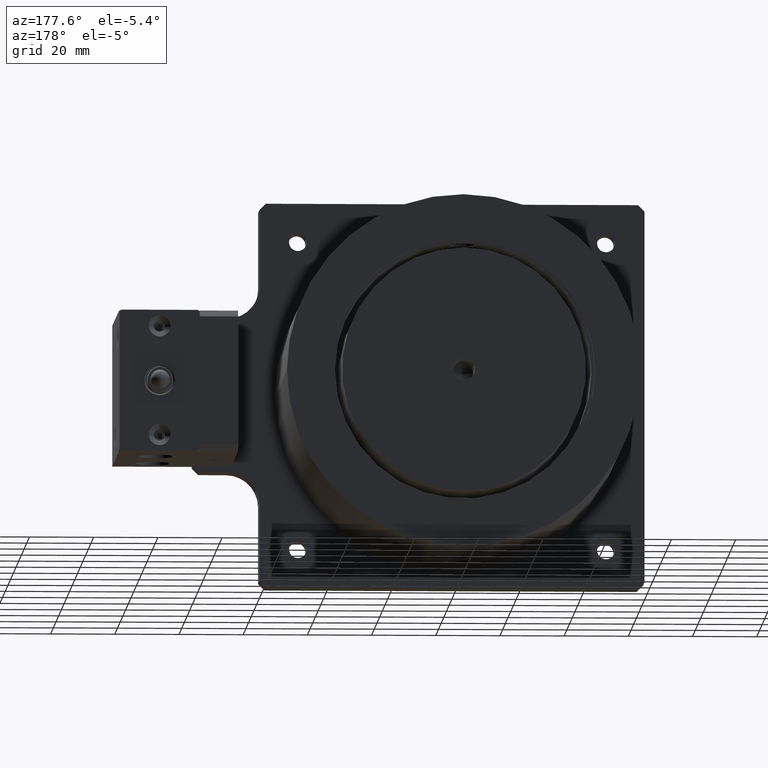
[diagram: clean part render]
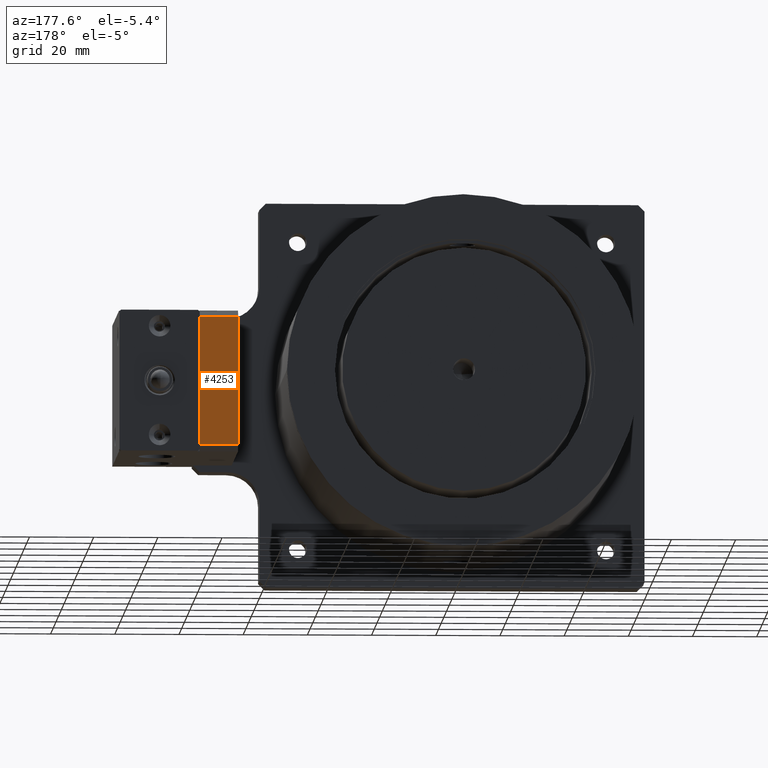
[diagram: same view with one face highlighted and labeled with its STEP entity id]
A machine part, auxiliary view. The second image highlights one B-rep face of the part: STEP entity #4253.
In plain terms, the highlighted planar face has unit normal (0, 1, 0).
Its self-contained STEP definition (entity closure, byte-faithful):
#3412=DIRECTION('',(0.E0,1.E0,0.E0));
#3413=VECTOR('',#3412,4.E1);
#3414=CARTESIAN_POINT('',(2.5E1,-2.E1,-6.E0));
#3415=LINE('',#3414,#3413);
#3528=DIRECTION('',(0.E0,1.E0,0.E0));
#3529=VECTOR('',#3528,4.E1);
#3530=CARTESIAN_POINT('',(2.5E1,-2.E1,6.E0));
#3531=LINE('',#3530,#3529);
#3771=DIRECTION('',(0.E0,0.E0,-1.E0));
#3772=VECTOR('',#3771,1.2E1);
#3773=CARTESIAN_POINT('',(2.5E1,2.E1,6.E0));
#3774=LINE('',#3773,#3772);
#3778=DIRECTION('',(0.E0,0.E0,-1.E0));
#3779=VECTOR('',#3778,1.2E1);
#3780=CARTESIAN_POINT('',(2.5E1,-2.E1,6.E0));
#3781=LINE('',#3780,#3779);
#3808=CARTESIAN_POINT('',(2.5E1,2.E1,-6.E0));
#3810=VERTEX_POINT('',#3808);
#3811=CARTESIAN_POINT('',(2.5E1,2.E1,6.E0));
#3812=VERTEX_POINT('',#3811);
#3815=CARTESIAN_POINT('',(2.5E1,-2.E1,-6.E0));
#3816=VERTEX_POINT('',#3815);
#3817=CARTESIAN_POINT('',(2.5E1,-2.E1,6.E0));
#3818=VERTEX_POINT('',#3817);
#4241=CARTESIAN_POINT('',(2.5E1,-2.2E1,-6.E0));
#4242=DIRECTION('',(1.E0,0.E0,0.E0));
#4243=DIRECTION('',(0.E0,1.E0,0.E0));
#4244=AXIS2_PLACEMENT_3D('',#4241,#4242,#4243);
#4245=PLANE('',#4244);
#4246=ORIENTED_EDGE('',*,*,#4234,.T.);
#4247=ORIENTED_EDGE('',*,*,#3888,.F.);
#4249=ORIENTED_EDGE('',*,*,#4248,.F.);
#4250=ORIENTED_EDGE('',*,*,#3956,.T.);
#4251=EDGE_LOOP('',(#4246,#4247,#4249,#4250));
#4252=FACE_OUTER_BOUND('',#4251,.F.);
#3888=EDGE_CURVE('',#3816,#3810,#3415,.T.);
#3956=EDGE_CURVE('',#3818,#3812,#3531,.T.);
#4234=EDGE_CURVE('',#3812,#3810,#3774,.T.);
#4248=EDGE_CURVE('',#3818,#3816,#3781,.T.);
#4253=ADVANCED_FACE('',(#4252),#4245,.T.);